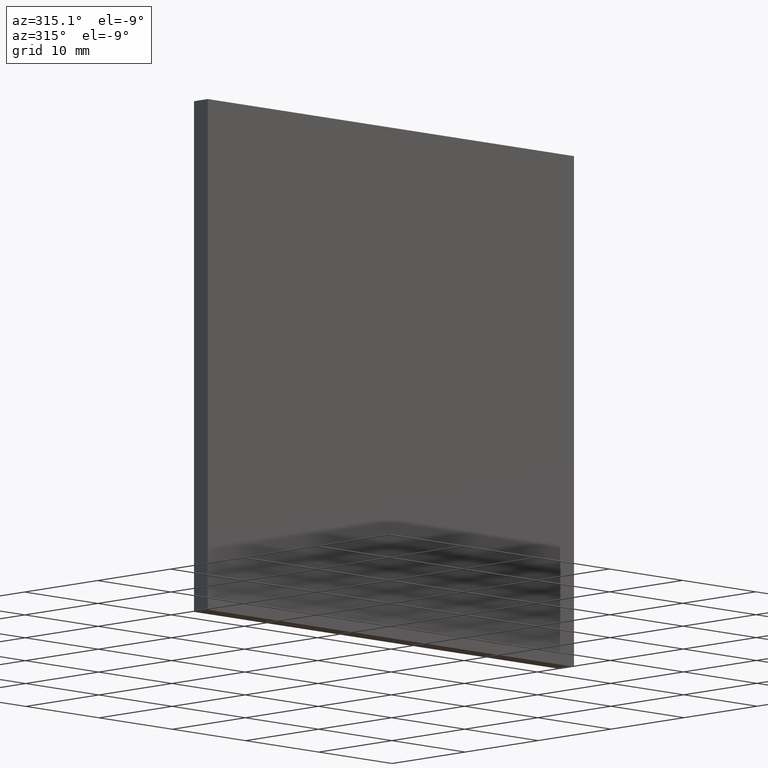
[diagram: clean part render]
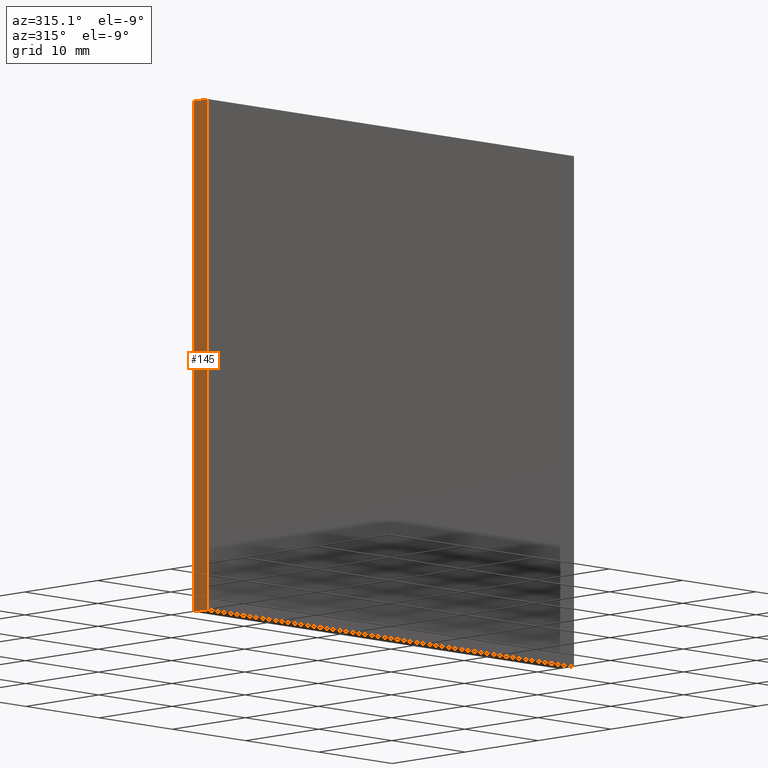
[diagram: same view with one face highlighted and labeled with its STEP entity id]
A machine part, auxiliary view. The second image highlights one B-rep face of the part: STEP entity #145.
In plain terms, the highlighted planar face has unit normal (1, -0, 0).
Its self-contained STEP definition (entity closure, byte-faithful):
#3 = ORIENTED_EDGE ( 'NONE', *, *, #164, .T. ) ;
#4 = DIRECTION ( 'NONE',  ( -0.0000000000000000000, -1.000000000000000000, -0.0000000000000000000 ) ) ;
#9 = FACE_OUTER_BOUND ( 'NONE', #12, .T. ) ;
#12 = EDGE_LOOP ( 'NONE', ( #81, #47, #60, #3 ) ) ;
#18 = AXIS2_PLACEMENT_3D ( 'NONE', #193, #130, #143 ) ;
#31 = VERTEX_POINT ( 'NONE', #188 ) ;
#42 = LINE ( 'NONE', #132, #142 ) ;
#47 = ORIENTED_EDGE ( 'NONE', *, *, #99, .F. ) ;
#60 = ORIENTED_EDGE ( 'NONE', *, *, #141, .F. ) ;
#61 = VECTOR ( 'NONE', #117, 1000.000000000000000 ) ;
#62 = CARTESIAN_POINT ( 'NONE',  ( -25.00000000000000000, 0.0000000000000000000, 24.99999999999999600 ) ) ;
#64 = VERTEX_POINT ( 'NONE', #69 ) ;
#67 = DIRECTION ( 'NONE',  ( -0.0000000000000000000, -0.0000000000000000000, 1.000000000000000000 ) ) ;
#69 = CARTESIAN_POINT ( 'NONE',  ( -25.00000000000000000, 1.889999999999999900, -25.00000000000000400 ) ) ;
#71 = VERTEX_POINT ( 'NONE', #102 ) ;
#77 = PLANE ( 'NONE',  #18 ) ;
#81 = ORIENTED_EDGE ( 'NONE', *, *, #167, .T. ) ;
#83 = CARTESIAN_POINT ( 'NONE',  ( -25.00000000000000000, 1.889999999999999900, 24.99999999999999600 ) ) ;
#91 = CARTESIAN_POINT ( 'NONE',  ( -25.00000000000000000, 1.889999999999999900, 24.99999999999999600 ) ) ;
#97 = LINE ( 'NONE', #189, #139 ) ;
#99 = EDGE_CURVE ( 'NONE', #200, #31, #97, .T. ) ;
#102 = CARTESIAN_POINT ( 'NONE',  ( -25.00000000000000000, 0.0000000000000000000, -25.00000000000000400 ) ) ;
#117 = DIRECTION ( 'NONE',  ( -0.0000000000000000000, -0.0000000000000000000, 1.000000000000000000 ) ) ;
#130 = DIRECTION ( 'NONE',  ( 1.000000000000000000, -0.0000000000000000000, 0.0000000000000000000 ) ) ;
#132 = CARTESIAN_POINT ( 'NONE',  ( -25.00000000000000000, 1.889999999999999900, -25.00000000000000400 ) ) ;
#139 = VECTOR ( 'NONE', #180, 1000.000000000000000 ) ;
#141 = EDGE_CURVE ( 'NONE', #64, #200, #184, .T. ) ;
#142 = VECTOR ( 'NONE', #4, 1000.000000000000000 ) ;
#143 = DIRECTION ( 'NONE',  ( 0.0000000000000000000, 0.0000000000000000000, -1.000000000000000000 ) ) ;
#145 = ADVANCED_FACE ( 'NONE', ( #9 ), #77, .F. ) ;
#156 = LINE ( 'NONE', #62, #161 ) ;
#161 = VECTOR ( 'NONE', #67, 1000.000000000000000 ) ;
#164 = EDGE_CURVE ( 'NONE', #64, #71, #42, .T. ) ;
#167 = EDGE_CURVE ( 'NONE', #71, #31, #156, .T. ) ;
#180 = DIRECTION ( 'NONE',  ( -0.0000000000000000000, -1.000000000000000000, -0.0000000000000000000 ) ) ;
#184 = LINE ( 'NONE', #91, #61 ) ;
#188 = CARTESIAN_POINT ( 'NONE',  ( -25.00000000000000000, 0.0000000000000000000, 24.99999999999999600 ) ) ;
#189 = CARTESIAN_POINT ( 'NONE',  ( -25.00000000000000000, 1.889999999999999900, 24.99999999999999600 ) ) ;
#193 = CARTESIAN_POINT ( 'NONE',  ( -25.00000000000000000, 1.889999999999999900, 24.99999999999999600 ) ) ;
#200 = VERTEX_POINT ( 'NONE', #83 ) ;